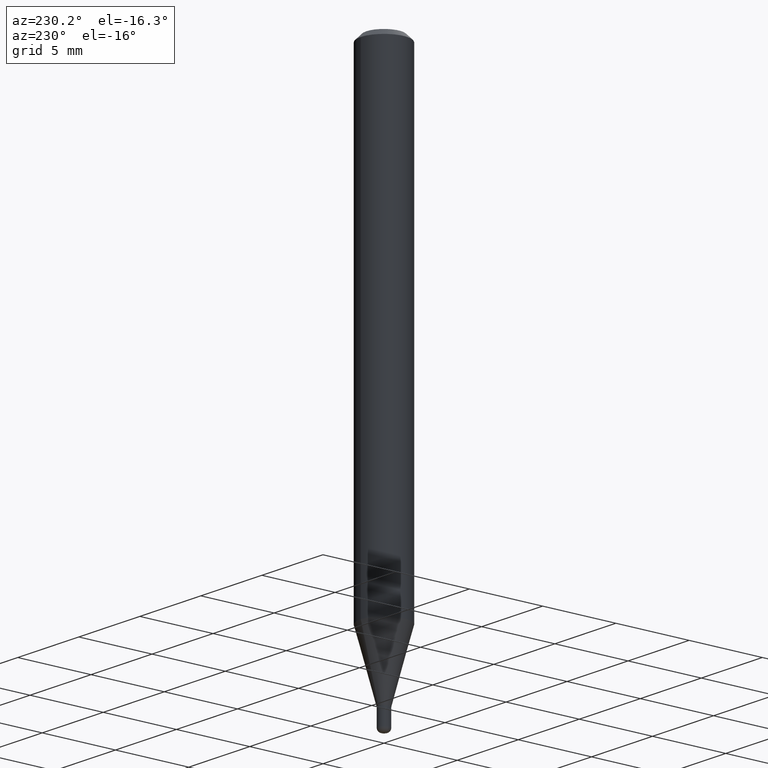
[diagram: clean part render]
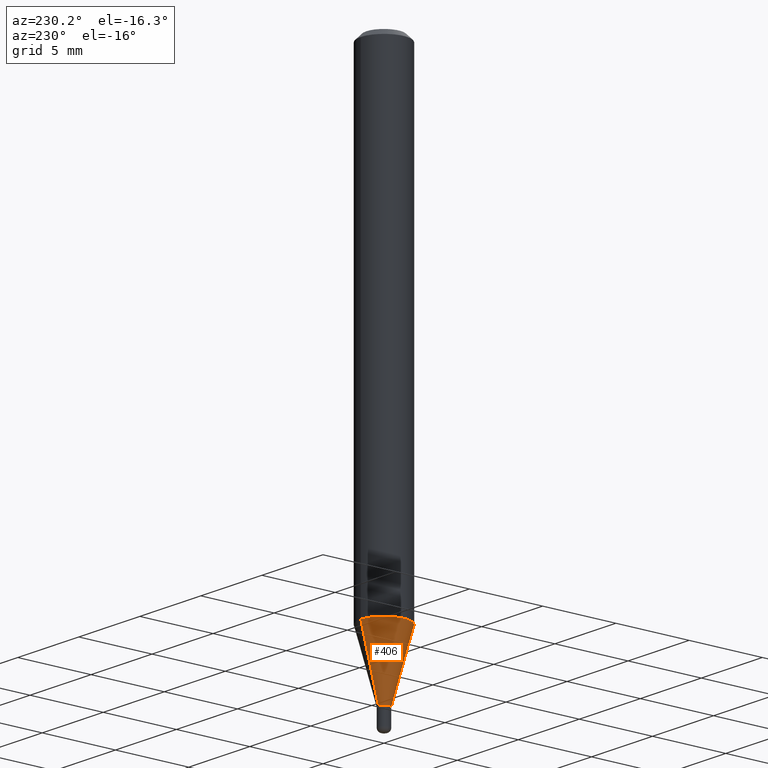
[diagram: same view with one face highlighted and labeled with its STEP entity id]
A machine part, auxiliary view. The second image highlights one B-rep face of the part: STEP entity #406.
In plain terms, the highlighted conical surface has half-angle 15 deg.
Its self-contained STEP definition (entity closure, byte-faithful):
#15 = DIRECTION ( 'NONE',  ( -1.807323732225323828E-15, -0.2588190451025172978, 0.9659258262890690894 ) ) ;
#30 = LINE ( 'NONE', #397, #500 ) ;
#47 = VERTEX_POINT ( 'NONE', #196 ) ;
#65 = ORIENTED_EDGE ( 'NONE', *, *, #301, .F. ) ;
#68 = DIRECTION ( 'NONE',  ( 1.839019923739594004E-15, 0.2588190451025240701, 0.9659258262890673130 ) ) ;
#82 = EDGE_CURVE ( 'NONE', #334, #466, #353, .T. ) ;
#91 = CARTESIAN_POINT ( 'NONE',  ( -1.047444401652589802E-16, -0.01500000000000509086, -1.445000000000000284 ) ) ;
#126 = DIRECTION ( 'NONE',  ( -6.982962677686265922E-15, -1.000000000000000000, 4.370956789862821150E-15 ) ) ;
#128 = VERTEX_POINT ( 'NONE', #518 ) ;
#129 = CARTESIAN_POINT ( 'NONE',  ( -1.047444401652589802E-16, -0.01500000000000509086, -1.445000000000000284 ) ) ;
#141 = DIRECTION ( 'NONE',  ( -2.445486429573083164E-29, 3.491456101148545241E-15, 1.000000000000000000 ) ) ;
#153 = AXIS2_PLACEMENT_3D ( 'NONE', #208, #440, #289 ) ;
#172 = CIRCLE ( 'NONE', #385, 0.06250000000000000000 ) ;
#184 = ORIENTED_EDGE ( 'NONE', *, *, #82, .T. ) ;
#196 = CARTESIAN_POINT ( 'NONE',  ( 4.440892098500932831E-16, 0.06249999999999555911, -1.267727586640479132 ) ) ;
#207 = DIRECTION ( 'NONE',  ( -2.445486429573083164E-29, 3.491456101148545241E-15, 1.000000000000000000 ) ) ;
#208 = CARTESIAN_POINT ( 'NONE',  ( 3.533727890733106107E-29, -5.045154066159648808E-15, -1.445000000000000284 ) ) ;
#247 = EDGE_CURVE ( 'NONE', #334, #47, #30, .T. ) ;
#255 = AXIS2_PLACEMENT_3D ( 'NONE', #339, #141, #383 ) ;
#289 = DIRECTION ( 'NONE',  ( -6.982962677686266711E-15, -1.000000000000000000, 0.000000000000000000 ) ) ;
#301 = EDGE_CURVE ( 'NONE', #47, #128, #172, .T. ) ;
#311 = VECTOR ( 'NONE', #15, 39.37007874015748854 ) ;
#313 = ORIENTED_EDGE ( 'NONE', *, *, #399, .T. ) ;
#324 = ORIENTED_EDGE ( 'NONE', *, *, #247, .F. ) ;
#334 = VERTEX_POINT ( 'NONE', #408 ) ;
#337 = EDGE_LOOP ( 'NONE', ( #324, #184, #313, #65 ) ) ;
#339 = CARTESIAN_POINT ( 'NONE',  ( 3.533727890733106107E-29, -5.045154066159648808E-15, -1.445000000000000284 ) ) ;
#353 = CIRCLE ( 'NONE', #153, 0.01500000000000004455 ) ;
#383 = DIRECTION ( 'NONE',  ( -6.982962677686266711E-15, -1.000000000000000000, 0.000000000000000000 ) ) ;
#385 = AXIS2_PLACEMENT_3D ( 'NONE', #482, #207, #126 ) ;
#397 = CARTESIAN_POINT ( 'NONE',  ( 1.065814103640506706E-16, 0.01499999999999499997, -1.445000000000000284 ) ) ;
#399 = EDGE_CURVE ( 'NONE', #466, #128, #443, .T. ) ;
#406 = ADVANCED_FACE ( 'NONE', ( #449 ), #445, .T. ) ;
#408 = CARTESIAN_POINT ( 'NONE',  ( 2.753353101070722973E-16, 0.01499999999999500171, -1.445000000000000284 ) ) ;
#440 = DIRECTION ( 'NONE',  ( -2.445486429573083164E-29, 3.491456101148545241E-15, 1.000000000000000000 ) ) ;
#443 = LINE ( 'NONE', #91, #311 ) ;
#445 = CONICAL_SURFACE ( 'NONE', #255, 0.01500000000000004455, 0.2617993877991494078 ) ;
#449 = FACE_OUTER_BOUND ( 'NONE', #337, .T. ) ;
#466 = VERTEX_POINT ( 'NONE', #129 ) ;
#482 = CARTESIAN_POINT ( 'NONE',  ( 3.100210609524725780E-29, -4.426215216970220777E-15, -1.267727586640478687 ) ) ;
#500 = VECTOR ( 'NONE', #68, 39.37007874015748854 ) ;
#518 = CARTESIAN_POINT ( 'NONE',  ( -4.364351673553607559E-16, -0.06250000000000444089, -1.267727586640478465 ) ) ;